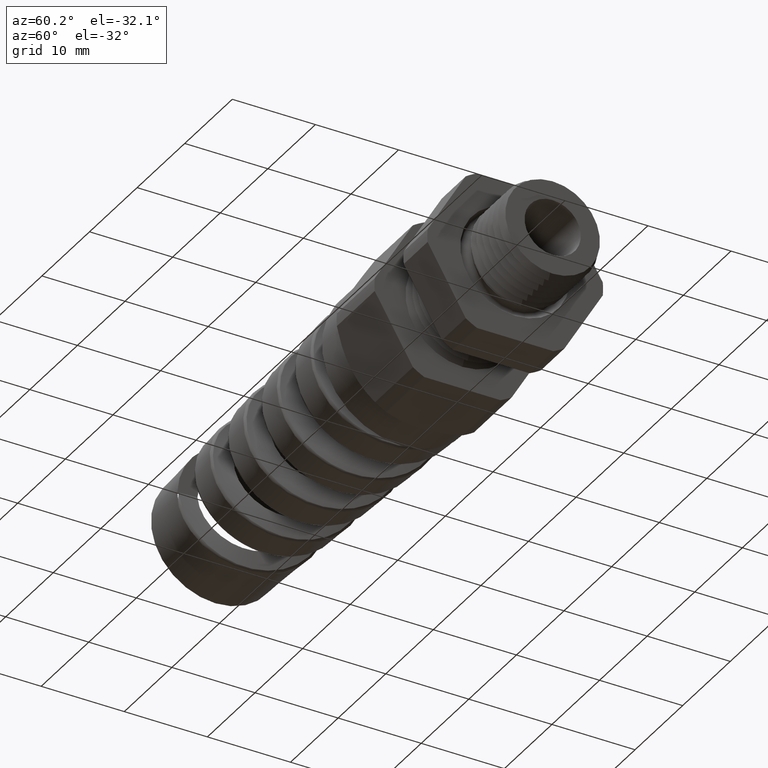
[diagram: clean part render]
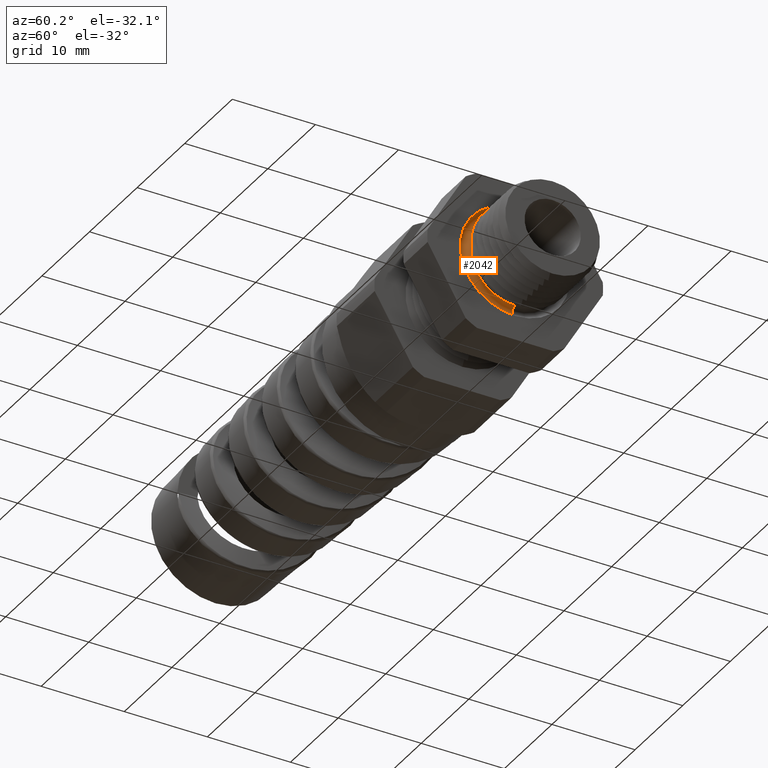
[diagram: same view with one face highlighted and labeled with its STEP entity id]
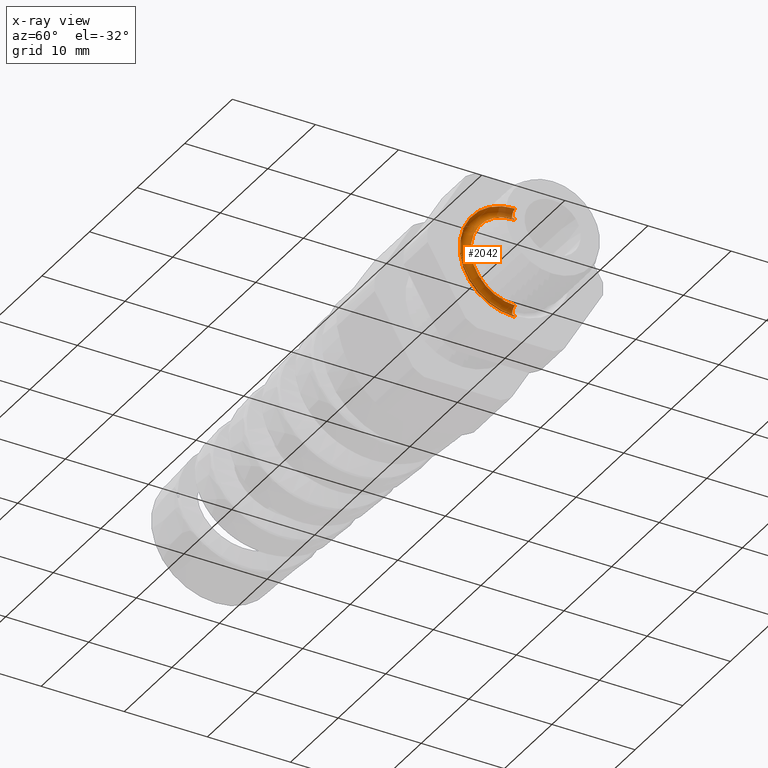
[diagram: x-ray of the same camera — body ghosted, the highlighted face saturated]
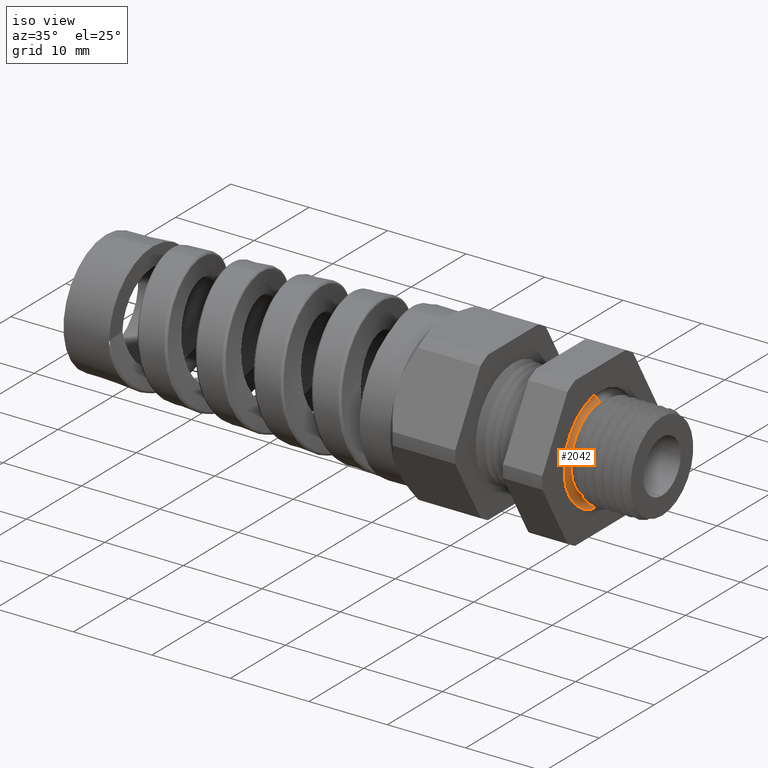
[diagram: same view with one face highlighted and labeled with its STEP entity id]
A machine part, auxiliary view. The second image highlights one B-rep face of the part: STEP entity #2042.
The next image is the same camera in x-ray: the body ghosted, the highlighted face saturated — about 10% of this face is hidden behind the body in this view.
A second angle (iso view) of the same face is appended — the face is thin or edge-on in the first view.
In plain terms, the highlighted toroidal blend (fillet) surface has major radius 5.969 mm and minor (blend) radius 0.635 mm.
Its self-contained STEP definition (entity closure, byte-faithful):
#140 = ORIENTED_EDGE ( 'NONE', *, *, #141, .F. ) ;
#141 = EDGE_CURVE ( 'NONE', #157, #156, #1130, .T. ) ;
#142 = ORIENTED_EDGE ( 'NONE', *, *, #143, .F. ) ;
#143 = EDGE_CURVE ( 'NONE', #1797, #157, #1125, .T. ) ;
#155 = EDGE_CURVE ( 'NONE', #1770, #156, #1101, .T. ) ;
#156 = VERTEX_POINT ( 'NONE', #1154 ) ;
#157 = VERTEX_POINT ( 'NONE', #1153 ) ;
#158 = ORIENTED_EDGE ( 'NONE', *, *, #155, .T. ) ;
#1101 = CIRCLE ( 'NONE', #1158, 0.02500000000000004000 ) ;
#1121 = DIRECTION ( 'NONE',  ( 0.0000000000000000000, 0.0000000000000000000, -1.000000000000000000 ) ) ;
#1122 = DIRECTION ( 'NONE',  ( 0.0000000000000000000, -1.000000000000000000, 0.0000000000000000000 ) ) ;
#1123 = CARTESIAN_POINT ( 'NONE',  ( -0.3100000000000000000, 0.0000000000000000000, -0.2349999999999999600 ) ) ;
#1124 = AXIS2_PLACEMENT_3D ( 'NONE', #1123, #1122, #1121 ) ;
#1125 = CIRCLE ( 'NONE', #1124, 0.02500000000000004000 ) ;
#1126 = DIRECTION ( 'NONE',  ( 0.0000000000000000000, 0.0000000000000000000, -1.000000000000000000 ) ) ;
#1127 = DIRECTION ( 'NONE',  ( -1.000000000000000000, 0.0000000000000000000, 0.0000000000000000000 ) ) ;
#1128 = CARTESIAN_POINT ( 'NONE',  ( -0.3100000000000000000, 0.0000000000000000000, 0.0000000000000000000 ) ) ;
#1129 = AXIS2_PLACEMENT_3D ( 'NONE', #1128, #1127, #1126 ) ;
#1130 = CIRCLE ( 'NONE', #1129, 0.2600000000000000100 ) ;
#1153 = CARTESIAN_POINT ( 'NONE',  ( -0.3100000000000000000, 0.0000000000000000000, -0.2599999999999999500 ) ) ;
#1154 = CARTESIAN_POINT ( 'NONE',  ( -0.3100000000000000000, 3.184081677783118100E-017, 0.2599999999999999500 ) ) ;
#1155 = DIRECTION ( 'NONE',  ( 0.0000000000000000000, 1.224646799147353000E-016, 1.000000000000000000 ) ) ;
#1156 = DIRECTION ( 'NONE',  ( 0.0000000000000000000, 1.000000000000000000, -1.224646799147353200E-016 ) ) ;
#1157 = CARTESIAN_POINT ( 'NONE',  ( -0.3100000000000000000, 2.877919977996279200E-017, 0.2349999999999999600 ) ) ;
#1158 = AXIS2_PLACEMENT_3D ( 'NONE', #1157, #1156, #1155 ) ;
#1770 = VERTEX_POINT ( 'NONE', #5627 ) ;
#1797 = VERTEX_POINT ( 'NONE', #5679 ) ;
#2042 = ADVANCED_FACE ( 'NONE', ( #5797 ), #5796, .F. ) ;
#2190 = EDGE_CURVE ( 'NONE', #1770, #1797, #5786, .T. ) ;
#2212 = ORIENTED_EDGE ( 'NONE', *, *, #2190, .F. ) ;
#2213 = EDGE_LOOP ( 'NONE', ( #2212, #158, #140, #142 ) ) ;
#5627 = CARTESIAN_POINT ( 'NONE',  ( -0.3100000000000000000, 2.571758278209440700E-017, 0.2099999999999999100 ) ) ;
#5679 = CARTESIAN_POINT ( 'NONE',  ( -0.3100000000000000000, 0.0000000000000000000, -0.2099999999999999100 ) ) ;
#5782 = DIRECTION ( 'NONE',  ( 0.0000000000000000000, 0.0000000000000000000, -1.000000000000000000 ) ) ;
#5783 = DIRECTION ( 'NONE',  ( 1.000000000000000000, 0.0000000000000000000, 0.0000000000000000000 ) ) ;
#5784 = CARTESIAN_POINT ( 'NONE',  ( -0.3100000000000000000, 0.0000000000000000000, 0.0000000000000000000 ) ) ;
#5785 = AXIS2_PLACEMENT_3D ( 'NONE', #5784, #5783, #5782 ) ;
#5786 = CIRCLE ( 'NONE', #5785, 0.2099999999999999100 ) ;
#5791 = DIRECTION ( 'NONE',  ( 0.0000000000000000000, 0.0000000000000000000, -1.000000000000000000 ) ) ;
#5792 = DIRECTION ( 'NONE',  ( 1.000000000000000000, 0.0000000000000000000, 0.0000000000000000000 ) ) ;
#5793 = CARTESIAN_POINT ( 'NONE',  ( -0.3100000000000000000, 0.0000000000000000000, 0.0000000000000000000 ) ) ;
#5794 = AXIS2_PLACEMENT_3D ( 'NONE', #5793, #5792, #5791 ) ;
#5796 = TOROIDAL_SURFACE ( 'NONE', #5794, 0.2349999999999999600, 0.02500000000000002900 ) ;
#5797 = FACE_OUTER_BOUND ( 'NONE', #2213, .T. ) ;